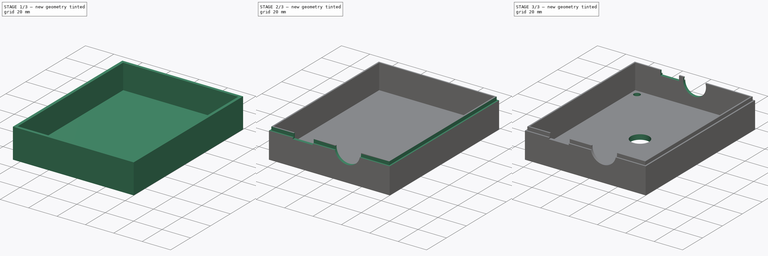
[diagram: build sequence overview — one tinted view per stage of 3, left to right]
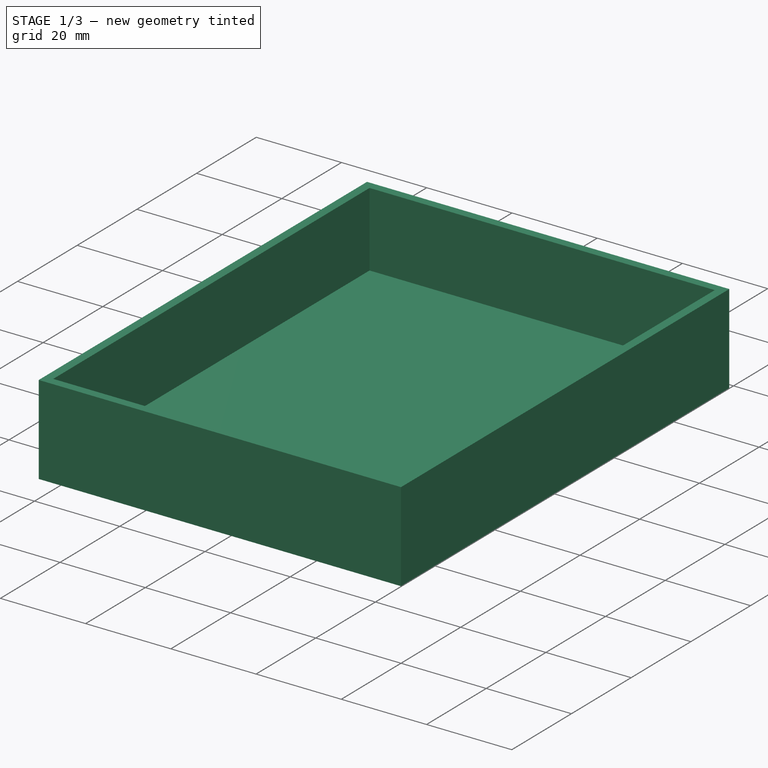
[diagram: stage 1 of 3 — iso view after this stage's code; geometry added in this stage tinted green]
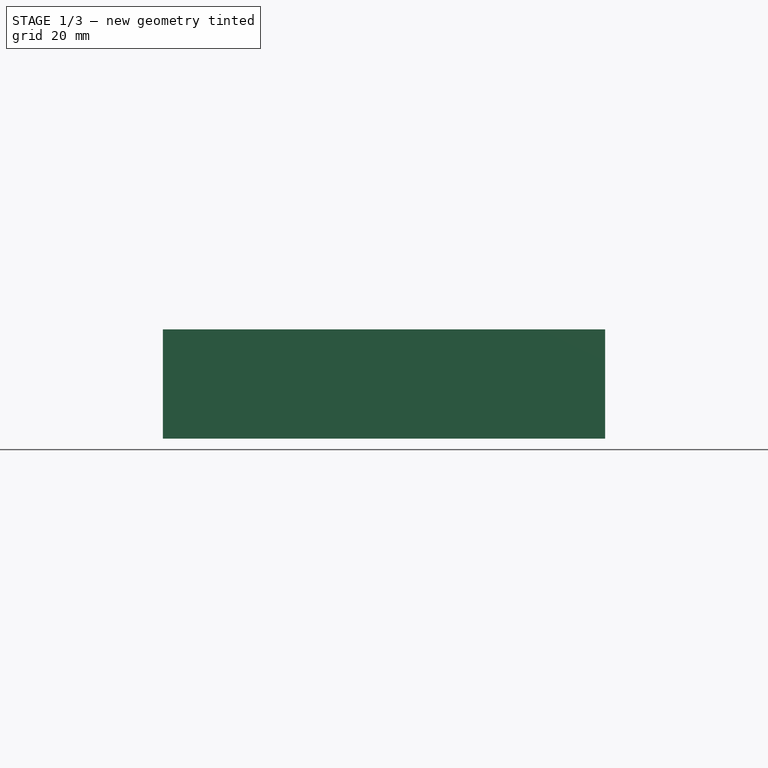
[diagram: stage 1 of 3 — front view after this stage's code; geometry added in this stage tinted green]
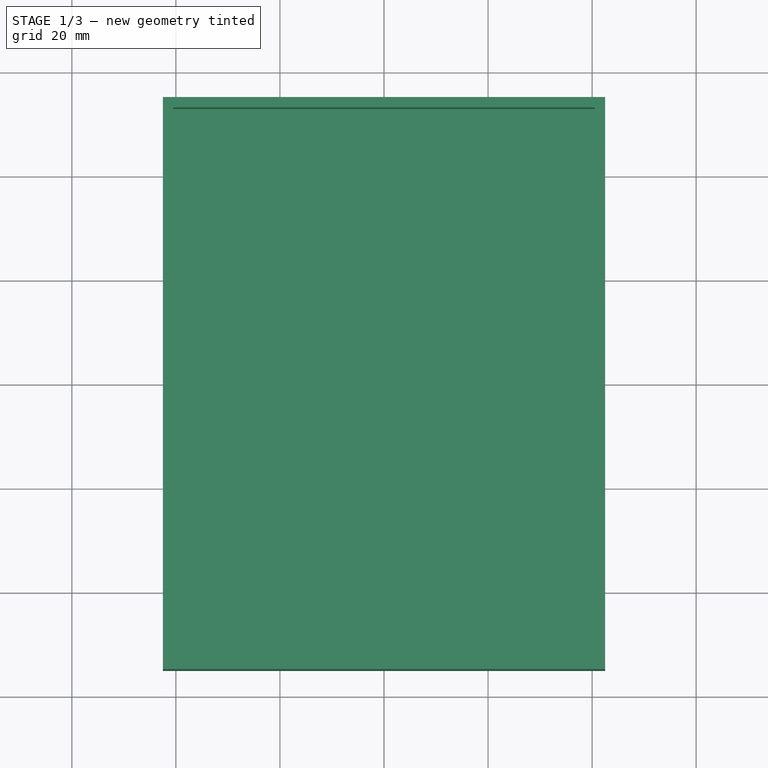
[diagram: stage 1 of 3 — top view after this stage's code; geometry added in this stage tinted green]
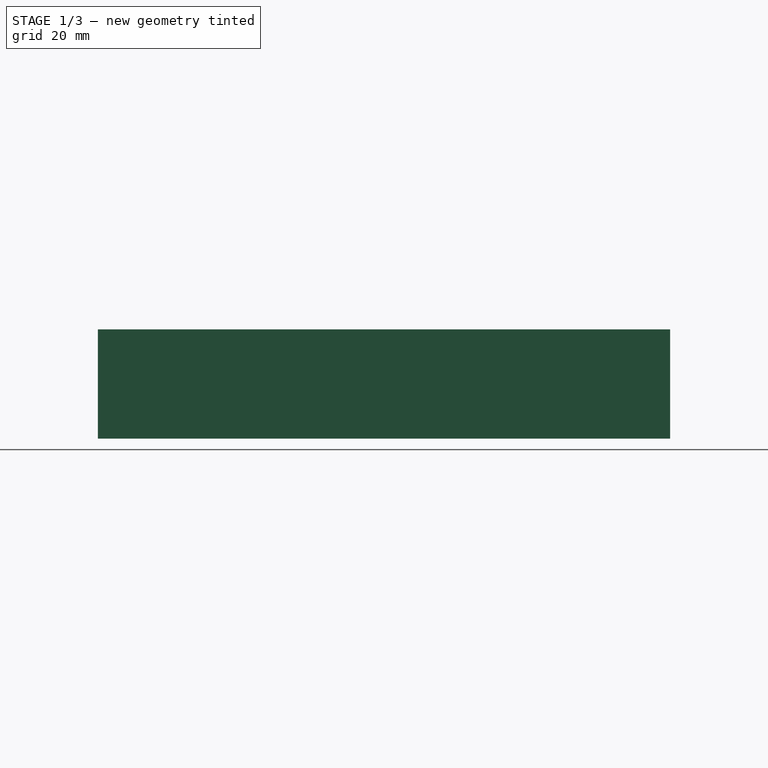
[diagram: stage 1 of 3 — right view after this stage's code; geometry added in this stage tinted green]
FCSTD DOCUMENT  (FreeCAD 0.19R24291 (Git))
Label: boitier_raspberry_ardusimple_couvercle
License: All rights reserved
LicenseURL: http://en.wikipedia.org/wiki/All_rights_reserved
objects: Sketcher::SketchObject×8, PartDesign::Pocket×6, PartDesign::Pad×2, PartDesign::Body×1
note: 25 computed .brp shape members not serialized (recipe doc carries the construction recipe); baked Part::Feature solids carry a one-line shape summary decoded from their .brp

FEATURE [Sketcher::SketchObject] Sketch
  FullyConstrained = true
  MapMode = 5
  Support = -> [XY_Plane]
  sketch-geometry (8):
    g0: LineSegment StartX=-42.5 StartY=55 StartZ=0 EndX=42.5 EndY=55 EndZ=0
    g1: LineSegment StartX=42.5 StartY=55 StartZ=0 EndX=42.5 EndY=-55 EndZ=0
    g2: LineSegment StartX=42.5 StartY=-55 StartZ=0 EndX=-42.5 EndY=-55 EndZ=0
    g3: LineSegment StartX=-42.5 StartY=-55 StartZ=0 EndX=-42.5 EndY=55 EndZ=0
    g4: LineSegment StartX=-42.5 StartY=55 StartZ=0 EndX=42.5 EndY=-55 EndZ=0
    g5: LineSegment StartX=-42.5 StartY=-55 StartZ=0 EndX=42.5 EndY=55 EndZ=0
    g6: GeomPoint X=0 Y=0 Z=0
    g7: GeomPoint X=0 Y=0 Z=0
  constraints (18):
    c: Coincident(g0,g1)
    c: Coincident(g1,g2)
    c: Coincident(g2,g3)
    c: Coincident(g3,g0)
    c: Horizontal(g0)
    c: Horizontal(g2)
    c: Vertical(g1)
    c: Vertical(g3)
    c: DistanceX(g0,g0) = 85
    c: DistanceY(g1,g0) = 110
    c: Coincident(g4,g0)
    c: Coincident(g4,g1)
    c: Coincident(g5,g2)
    c: Coincident(g5,g0)
    c: PointOnObject(g6,g4)
    c: Coincident(g7,g6)
    c: PointOnObject(g6,g5)
    c: Coincident(g6,g-1)
FEATURE [PartDesign::Pad] Pad  label="dessus_couvercle"
  Direction = (1,1,1)
  Length = 3.5
  Length2 = 100
  Profile = -> Sketch
  Type = 0
FEATURE [Sketcher::SketchObject] Sketch001
  ExternalGeometry = -> [Pad]
  FullyConstrained = true
  MapMode = 5
  Placement = pos=(0,0,3.5) rot=(0,0,1;0rad)
  Support = -> [Pad]
  sketch-geometry (4):
    g0: LineSegment StartX=-42.5 StartY=55 StartZ=0 EndX=42.5 EndY=55 EndZ=0
    g1: LineSegment StartX=42.5 StartY=55 StartZ=0 EndX=42.5 EndY=-55 EndZ=0
    g2: LineSegment StartX=42.5 StartY=-55 StartZ=0 EndX=-42.5 EndY=-55 EndZ=0
    g3: LineSegment StartX=-42.5 StartY=-55 StartZ=0 EndX=-42.5 EndY=55 EndZ=0
  constraints (10):
    c: Coincident(g0,g1)
    c: Coincident(g1,g2)
    c: Coincident(g2,g3)
    c: Coincident(g3,g0)
    c: Horizontal(g0)
    c: Horizontal(g2)
    c: Vertical(g1)
    c: Vertical(g3)
    c: Coincident(g0,g-6)
    c: Coincident(g1,g-5)
FEATURE [PartDesign::Pad] Pad001  label="paroi_1"
  BaseFeature = -> Pad
  Direction = (1,1,1)
  Length = 17.5
  Length2 = 100
  Profile = -> Sketch001
  Type = 0
FEATURE [Sketcher::SketchObject] Sketch002
  ExternalGeometry = -> [Pad001]
  FullyConstrained = true
  MapMode = 5
  Placement = pos=(0,0,21) rot=(0,0,1;0rad)
  Support = -> [Pad001]
  sketch-geometry (4):
    g0: LineSegment StartX=-40.5 StartY=53 StartZ=0 EndX=40.5 EndY=53 EndZ=0
    g1: LineSegment StartX=40.5 StartY=53 StartZ=0 EndX=40.5 EndY=-53 EndZ=0
    g2: LineSegment StartX=40.5 StartY=-53 StartZ=0 EndX=-40.5 EndY=-53 EndZ=0
    g3: LineSegment StartX=-40.5 StartY=-53 StartZ=0 EndX=-40.5 EndY=53 EndZ=0
  constraints (12):
    c: Coincident(g0,g1)
    c: Coincident(g1,g2)
    c: Coincident(g2,g3)
    c: Coincident(g3,g0)
    c: Horizontal(g0)
    c: Horizontal(g2)
    c: Vertical(g1)
    c: Vertical(g3)
    c: DistanceX(g-5,g0) = 2
    c: DistanceX(g1,g-6) = 2
    c: DistanceY(g0,g-4) = 2
    c: DistanceY(g-6,g2) = 2
FEATURE [PartDesign::Pocket] Pocket  label="paroi_2"
  BaseFeature = -> Pad001
  Length = 17.5
  Length2 = 100
  Profile = -> Sketch002
  Type = 0
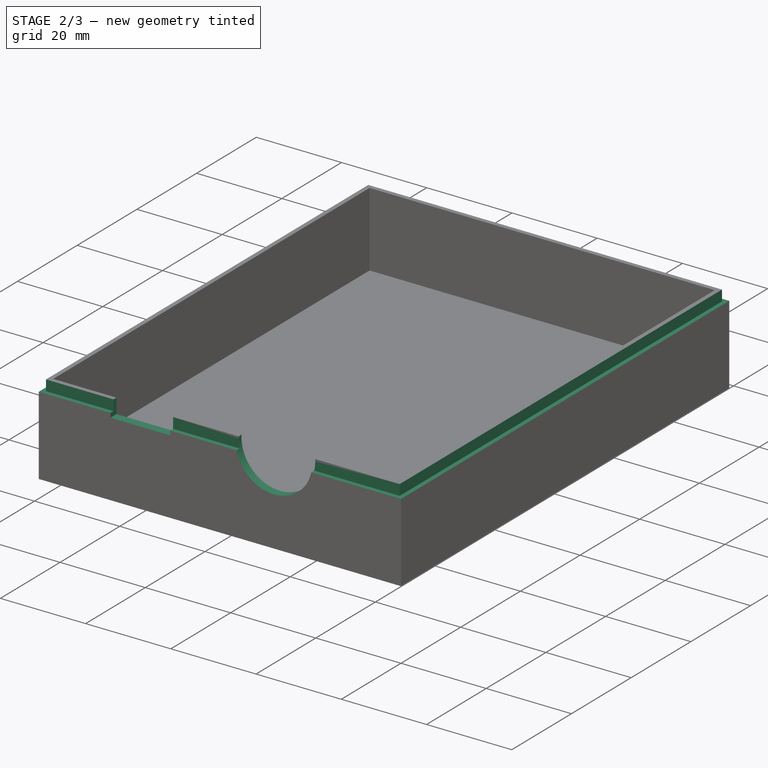
[diagram: stage 2 of 3 — iso view after this stage's code; geometry added in this stage tinted green]
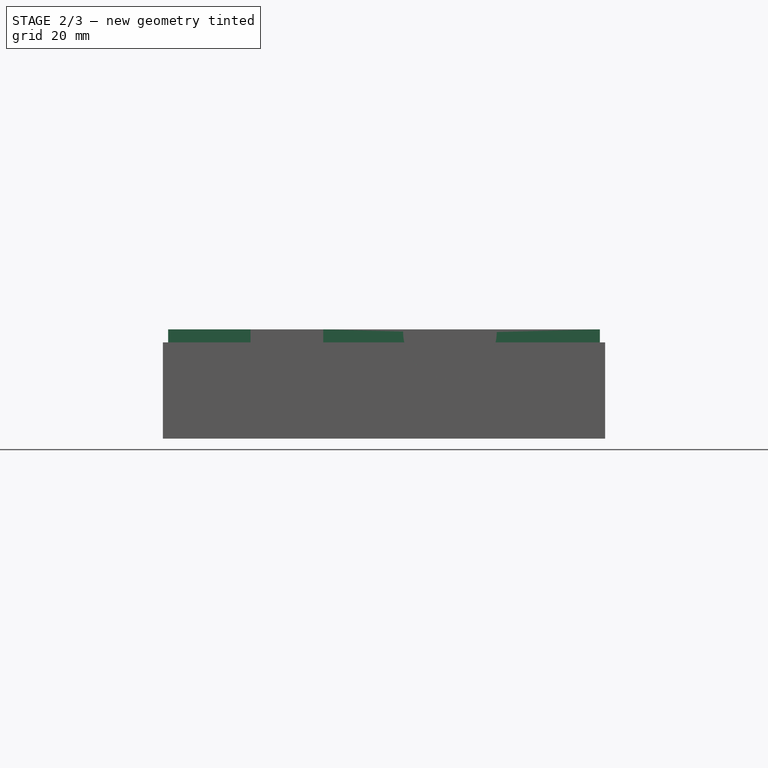
[diagram: stage 2 of 3 — front view after this stage's code; geometry added in this stage tinted green]
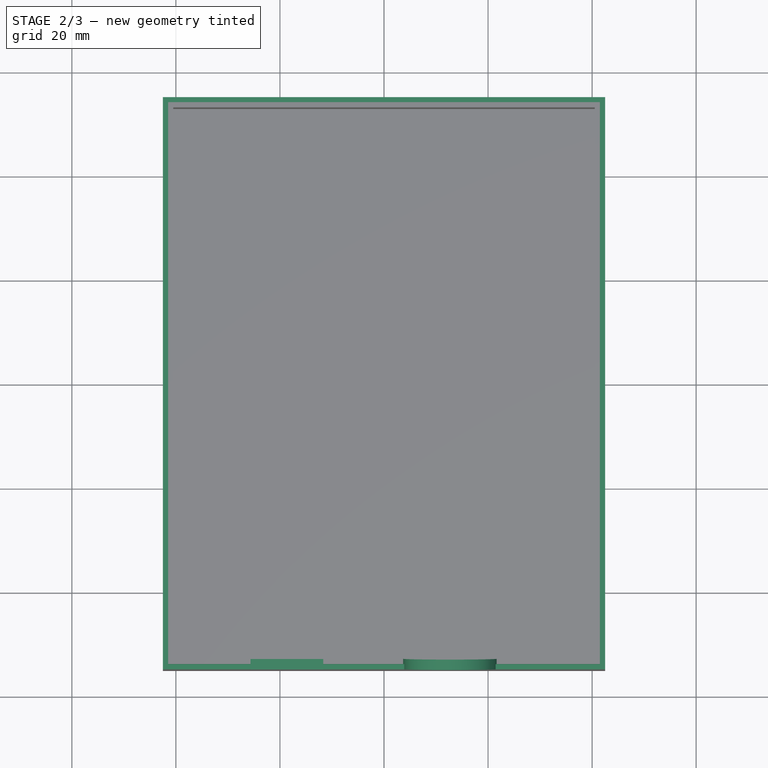
[diagram: stage 2 of 3 — top view after this stage's code; geometry added in this stage tinted green]
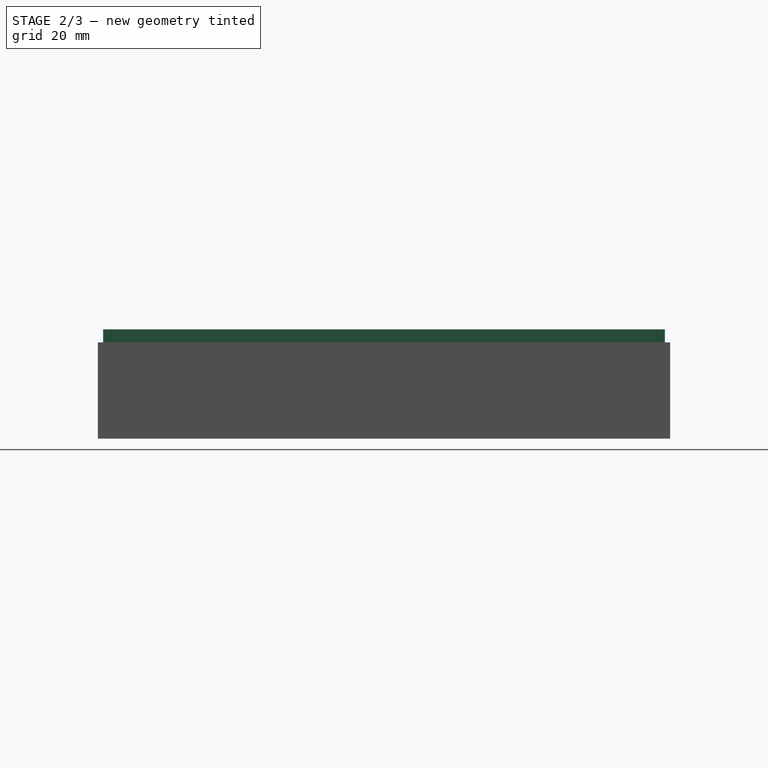
[diagram: stage 2 of 3 — right view after this stage's code; geometry added in this stage tinted green]
FEATURE [Sketcher::SketchObject] Sketch003
  ExternalGeometry = -> [Pocket]
  FullyConstrained = true
  MapMode = 5
  Placement = pos=(0,0,21) rot=(0,0,1;0rad)
  Support = -> [Pocket]
  sketch-geometry (8):
    g0: LineSegment StartX=-42.5 StartY=55 StartZ=0 EndX=42.5 EndY=55 EndZ=0
    g1: LineSegment StartX=42.5 StartY=55 StartZ=0 EndX=42.5 EndY=-55 EndZ=0
    g2: LineSegment StartX=42.5 StartY=-55 StartZ=0 EndX=-42.5 EndY=-55 EndZ=0
    g3: LineSegment StartX=-42.5 StartY=-55 StartZ=0 EndX=-42.5 EndY=55 EndZ=0
    g4: LineSegment StartX=-41.5 StartY=54 StartZ=0 EndX=41.5 EndY=54 EndZ=0
    g5: LineSegment StartX=41.5 StartY=54 StartZ=0 EndX=41.5 EndY=-54 EndZ=0
    g6: LineSegment StartX=41.5 StartY=-54 StartZ=0 EndX=-41.5 EndY=-54 EndZ=0
    g7: LineSegment StartX=-41.5 StartY=-54 StartZ=0 EndX=-41.5 EndY=54 EndZ=0
  constraints (22):
    c: Coincident(g0,g1)
    c: Coincident(g1,g2)
    c: Coincident(g2,g3)
    c: Coincident(g3,g0)
    c: Horizontal(g0)
    c: Horizontal(g2)
    c: Vertical(g1)
    c: Vertical(g3)
    c: Coincident(g0,g-3)
    c: Coincident(g1,g-4)
    c: Coincident(g4,g5)
    c: Coincident(g5,g6)
    c: Coincident(g6,g7)
    c: Coincident(g7,g4)
    c: Horizontal(g4)
    c: Horizontal(g6)
    c: Vertical(g5)
    c: Vertical(g7)
    c: DistanceX(g5,g1) = 1
    c: DistanceX(g2,g6) = 1
    c: DistanceY(g1,g5) = 1
    c: DistanceY(g4,g0) = 1
FEATURE [PartDesign::Pocket] Pocket001  label="raynure"
  BaseFeature = -> Pocket
  Length = 2.5
  Length2 = 100
  Profile = -> Sketch003
  Type = 0
FEATURE [Sketcher::SketchObject] Sketch004
  ExternalGeometry = -> [Pocket001]
  FullyConstrained = true
  MapMode = 5
  Placement = pos=(0,-55,0) rot=(1,0,0;1.5708rad)
  Support = -> [Pocket001]
  sketch-geometry (5):
    g0: Circle CenterX=12.67 CenterY=20.5 CenterZ=0 NormalX=0 NormalY=0 NormalZ=1 AngleXU=0 Radius=9
    g1: LineSegment StartX=-25.67 StartY=29.5 StartZ=0 EndX=-11.67 EndY=29.5 EndZ=0
    g2: LineSegment StartX=-11.67 StartY=29.5 StartZ=0 EndX=-11.67 EndY=17.5 EndZ=0
    g3: LineSegment StartX=-11.67 StartY=17.5 StartZ=0 EndX=-25.67 EndY=17.5 EndZ=0
    g4: LineSegment StartX=-25.67 StartY=17.5 StartZ=0 EndX=-25.67 EndY=29.5 EndZ=0
  constraints (15):
    c: Diameter(g0) = 18
    c: DistanceX(g-1,g0) = 12.67
    c: DistanceY(g-3,g0) = 17
    c: Coincident(g1,g2)
    c: Coincident(g2,g3)
    c: Coincident(g3,g4)
    c: Coincident(g4,g1)
    c: Horizontal(g1)
    c: Horizontal(g3)
    c: Vertical(g2)
    c: Vertical(g4)
    c: DistanceY(g2,g1) = 12
    c: DistanceX(g2,g-1) = 11.67
    c: DistanceX(g3,g2) = 14
    c: DistanceY(g-3,g2) = 14
FEATURE [PartDesign::Pocket] Pocket002  label="trou_alim_antenne"
  BaseFeature = -> Pocket001
  Length = 5
  Length2 = 100
  Profile = -> Sketch004
  Type = 0
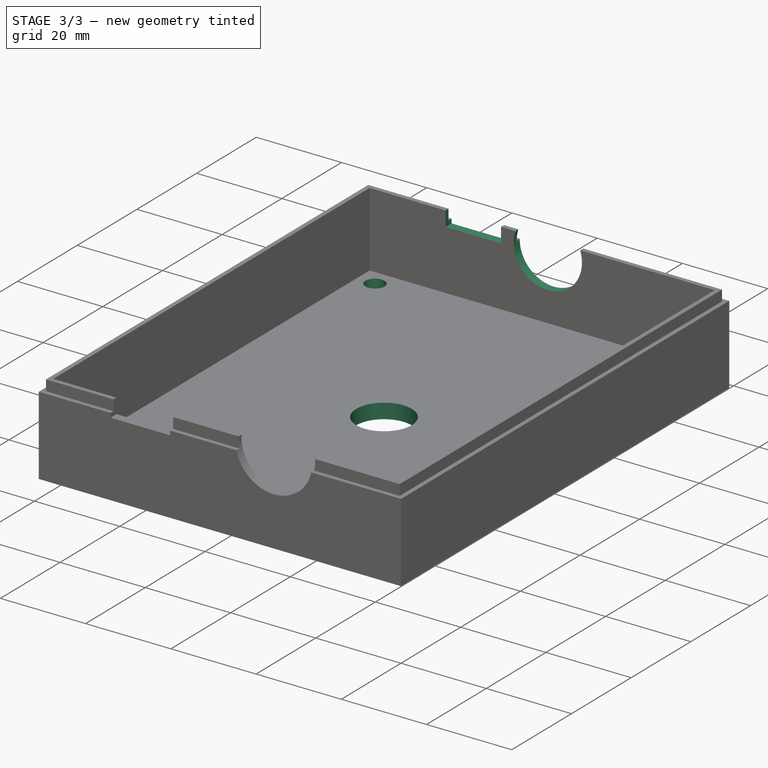
[diagram: stage 3 of 3 — iso view after this stage's code; geometry added in this stage tinted green]
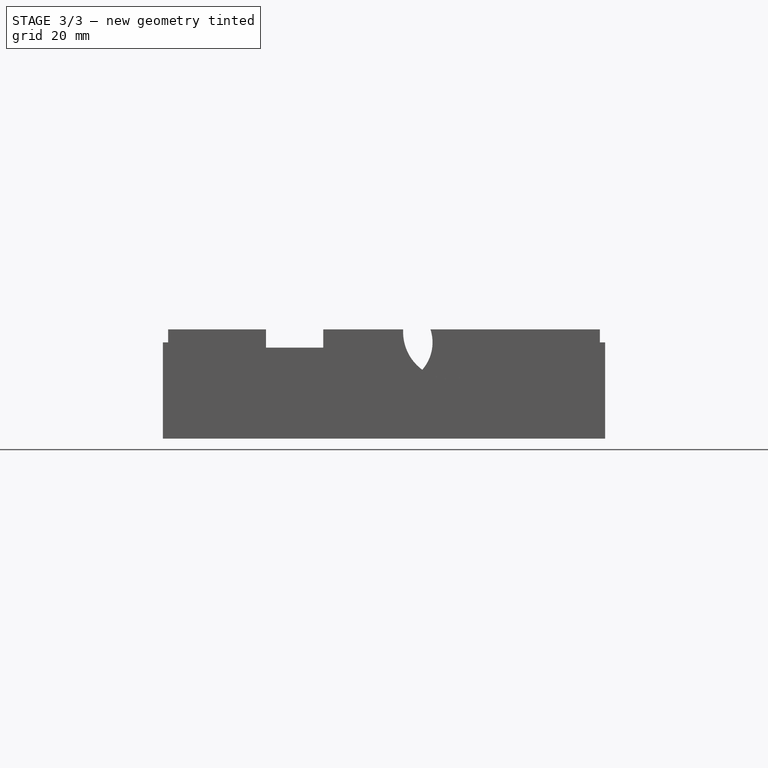
[diagram: stage 3 of 3 — front view after this stage's code; geometry added in this stage tinted green]
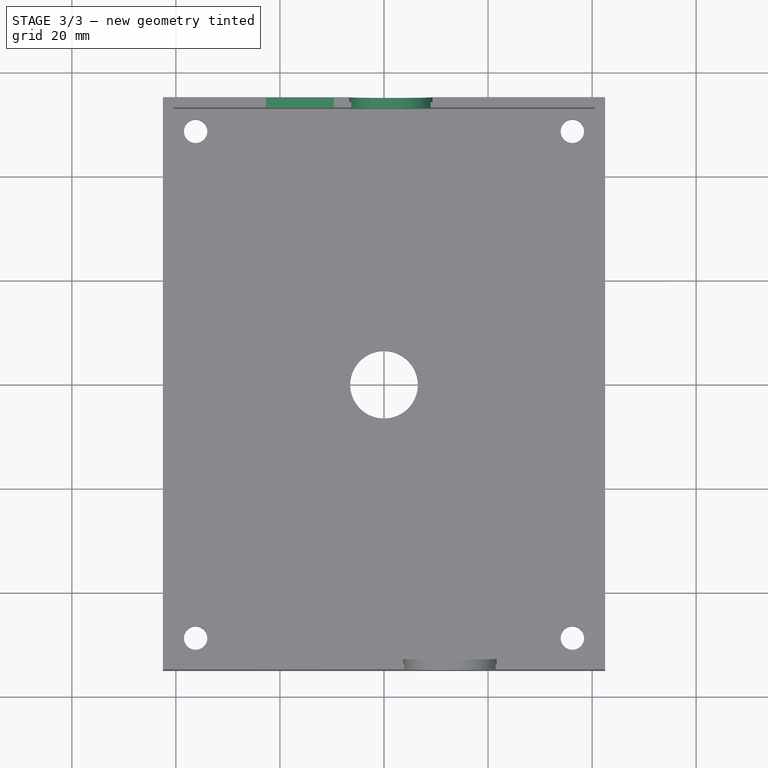
[diagram: stage 3 of 3 — top view after this stage's code; geometry added in this stage tinted green]
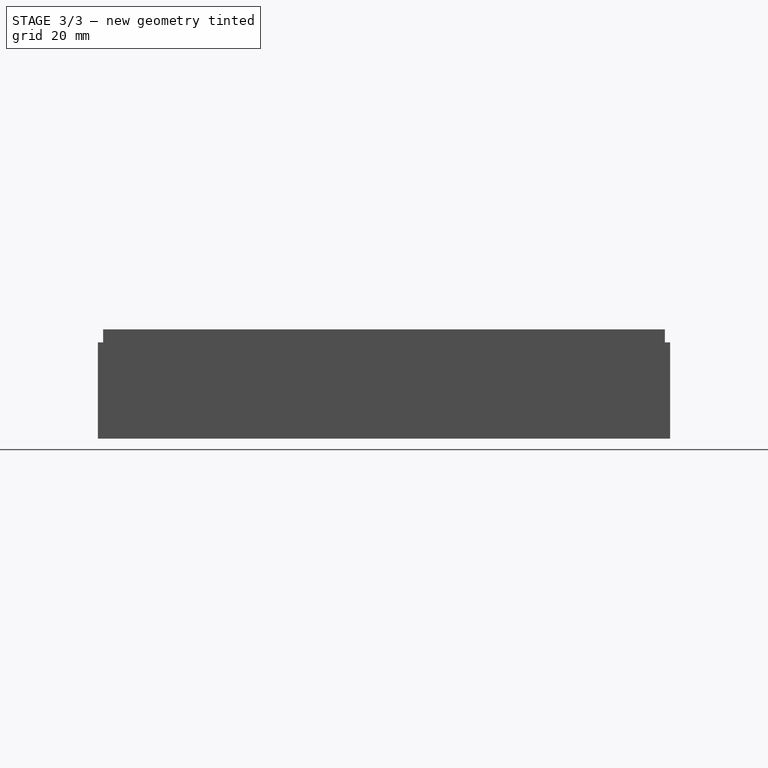
[diagram: stage 3 of 3 — right view after this stage's code; geometry added in this stage tinted green]
FEATURE [Sketcher::SketchObject] Sketch005
  ExternalGeometry = -> [Pocket002]
  FullyConstrained = true
  MapMode = 5
  Placement = pos=(0,55,0) rot=(0,0.707107,0.707107;3.14159rad)
  Support = -> [Pocket002]
  sketch-geometry (5):
    g0: Circle CenterX=-1.33 CenterY=18.5 CenterZ=0 NormalX=0 NormalY=0 NormalZ=1 AngleXU=0 Radius=8
    g1: LineSegment StartX=9.67 StartY=29.5 StartZ=0 EndX=22.67 EndY=29.5 EndZ=0
    g2: LineSegment StartX=22.67 StartY=29.5 StartZ=0 EndX=22.67 EndY=17.5 EndZ=0
    g3: LineSegment StartX=22.67 StartY=17.5 StartZ=0 EndX=9.67 EndY=17.5 EndZ=0
    g4: LineSegment StartX=9.67 StartY=17.5 StartZ=0 EndX=9.67 EndY=29.5 EndZ=0
  constraints (15):
    c: Diameter(g0) = 16
    c: DistanceX(g-1,g0) = -1.33
    c: DistanceY(g-3,g0) = 15
    c: Coincident(g1,g2)
    c: Coincident(g2,g3)
    c: Coincident(g3,g4)
    c: Coincident(g4,g1)
    c: Horizontal(g1)
    c: Horizontal(g3)
    c: Vertical(g2)
    c: Vertical(g4)
    c: DistanceY(g-3,g2) = 14
    c: DistanceY(g2,g1) = 12
    c: DistanceX(g-1,g3) = 9.67
    c: DistanceX(g3,g2) = 13
FEATURE [PartDesign::Pocket] Pocket003  label="trou_alim_radio"
  BaseFeature = -> Pocket002
  Length = 5
  Length2 = 100
  Profile = -> Sketch005
  Type = 0
FEATURE [Sketcher::SketchObject] Sketch006
  ExternalGeometry = -> [Pocket003]
  FullyConstrained = true
  MapMode = 5
  Placement = pos=(0,0,3.5) rot=(0,0,1;0rad)
  Support = -> [Pocket003]
  sketch-geometry (4):
    g0: Circle CenterX=-36.21 CenterY=48.71 CenterZ=0 NormalX=0 NormalY=0 NormalZ=1 AngleXU=0 Radius=2.25
    g1: Circle CenterX=36.21 CenterY=48.71 CenterZ=0 NormalX=0 NormalY=0 NormalZ=1 AngleXU=0 Radius=2.25
    g2: Circle CenterX=-36.21 CenterY=-48.71 CenterZ=0 NormalX=0 NormalY=0 NormalZ=1 AngleXU=0 Radius=2.25
    g3: Circle CenterX=36.21 CenterY=-48.71 CenterZ=0 NormalX=0 NormalY=0 NormalZ=1 AngleXU=0 Radius=2.25
  constraints (12):
    c: Diameter(g0) = 4.5
    c: Diameter(g1) = 4.5
    c: Diameter(g2) = 4.5
    c: Diameter(g3) = 4.5
    c: DistanceX(g-3,g0) = 4.29
    c: DistanceX(g1,g-3) = 4.29
    c: DistanceX(g3,g-4) = 4.29
    c: DistanceX(g-4,g2) = 4.29
    c: DistanceY(g0,g-3) = 4.29
    c: DistanceY(g1,g-3) = 4.29
    c: DistanceY(g-4,g3) = 4.29
    c: DistanceY(g-4,g2) = 4.29
FEATURE [PartDesign::Pocket] Pocket004  label="trou_vis"
  BaseFeature = -> Pocket003
  Length = 5
  Length2 = 100
  Profile = -> Sketch006
  Type = 0
FEATURE [Sketcher::SketchObject] Sketch007
  FullyConstrained = true
  MapMode = 5
  Placement = pos=(0,0,3.5) rot=(0,0,1;0rad)
  Support = -> [Pocket004]
  sketch-geometry (1):
    g0: Circle CenterX=0 CenterY=0 CenterZ=0 NormalX=0 NormalY=0 NormalZ=1 AngleXU=0 Radius=6.5
  constraints (2):
    c: Coincident(g0,g-1)
    c: Diameter(g0) = 13
FEATURE [PartDesign::Pocket] Pocket005  label="trou_capteur"
  BaseFeature = -> Pocket004
  Length = 5
  Length2 = 100
  Profile = -> Sketch007
  Type = 0
FEATURE [PartDesign::Body] Body
  Group = -> [Sketch,Pad,Sketch001,Pad001,Sketch002,Pocket,Sketch003,Pocket001,Sketch004,Pocket002,Sketch005,Pocket003,Sketch006,Pocket004,Sketch007,Pocket005]
  Origin = -> Origin
  Tip = -> Pocket005
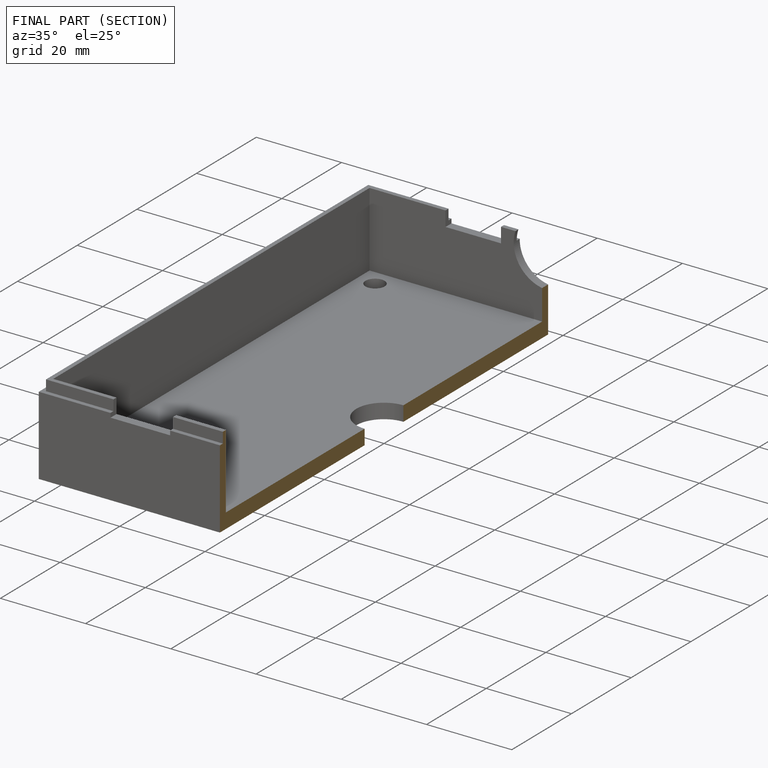
[diagram: finished part — half-section view (interior)]
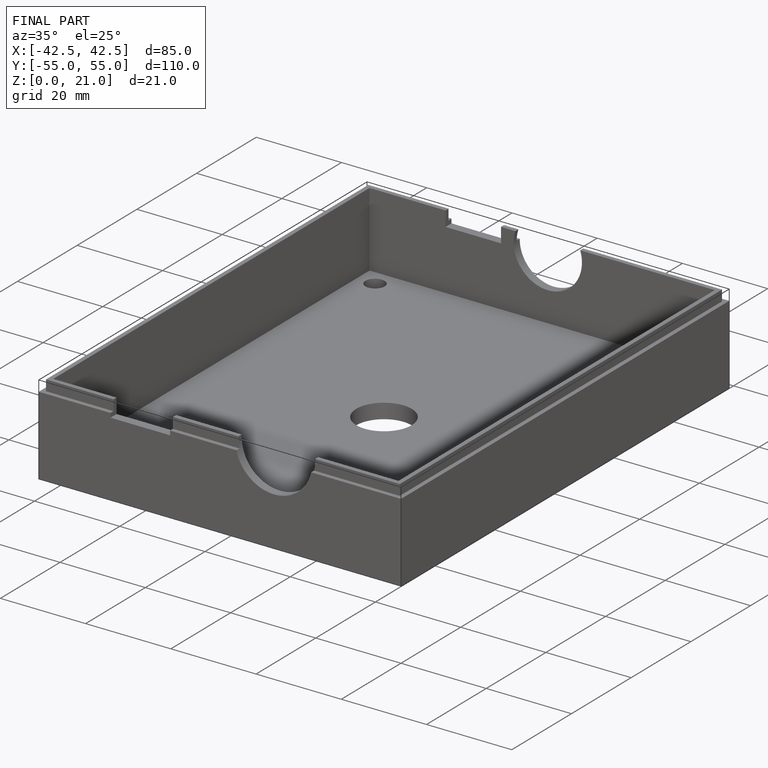
[diagram: finished part — iso view with bounding-box wireframe]
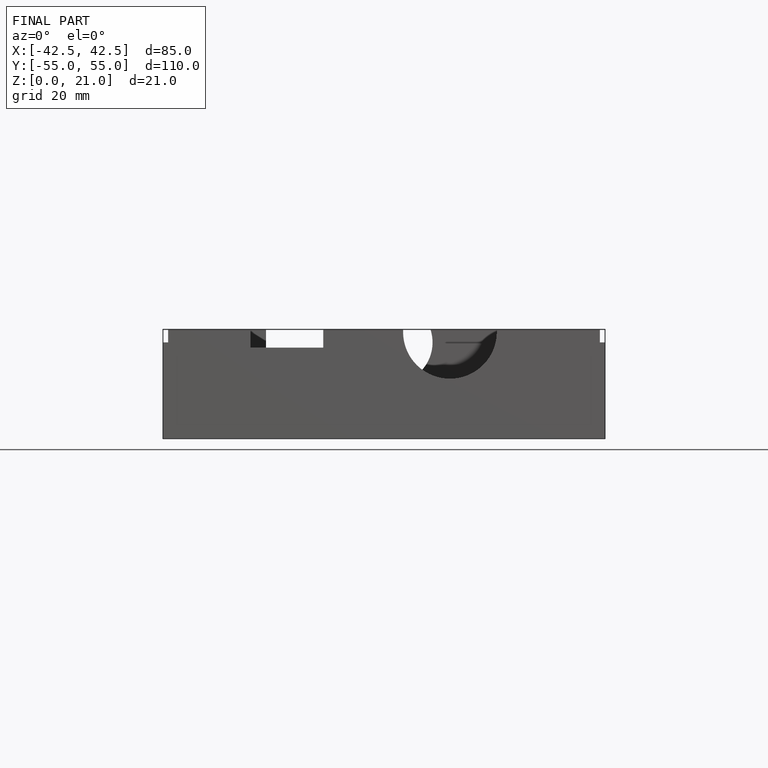
[diagram: finished part — front view with bounding-box wireframe]
